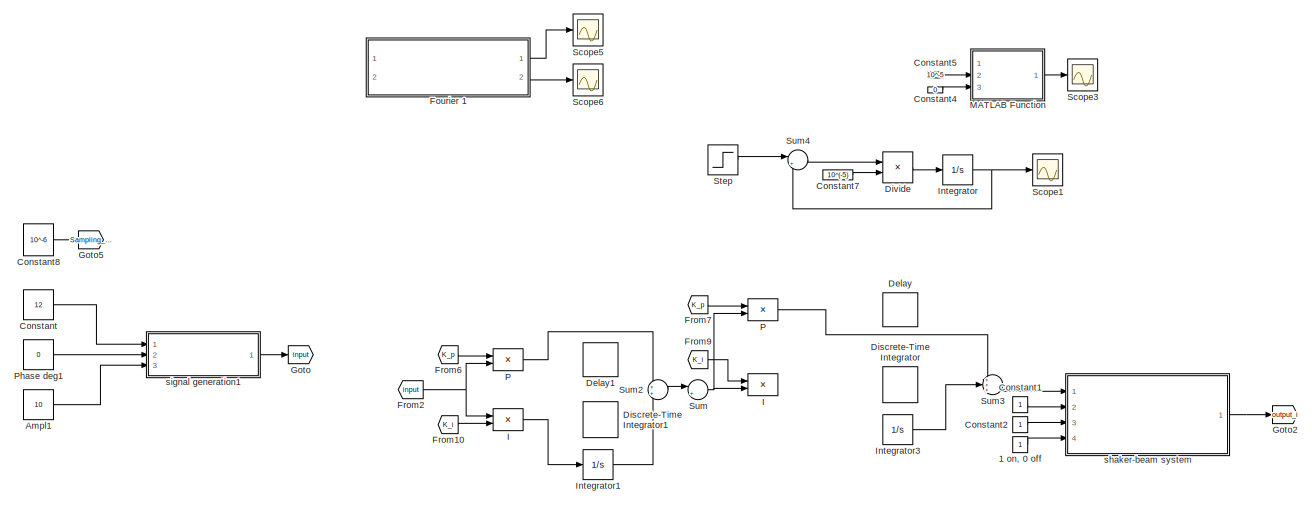
[diagram: root canvas - part 1/2, full width, middle band]
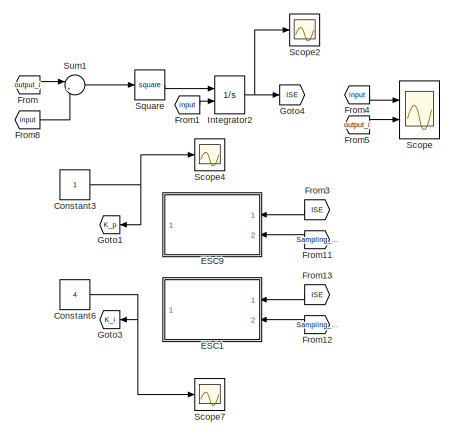
[diagram: root canvas - part 2/2, bottom right region]
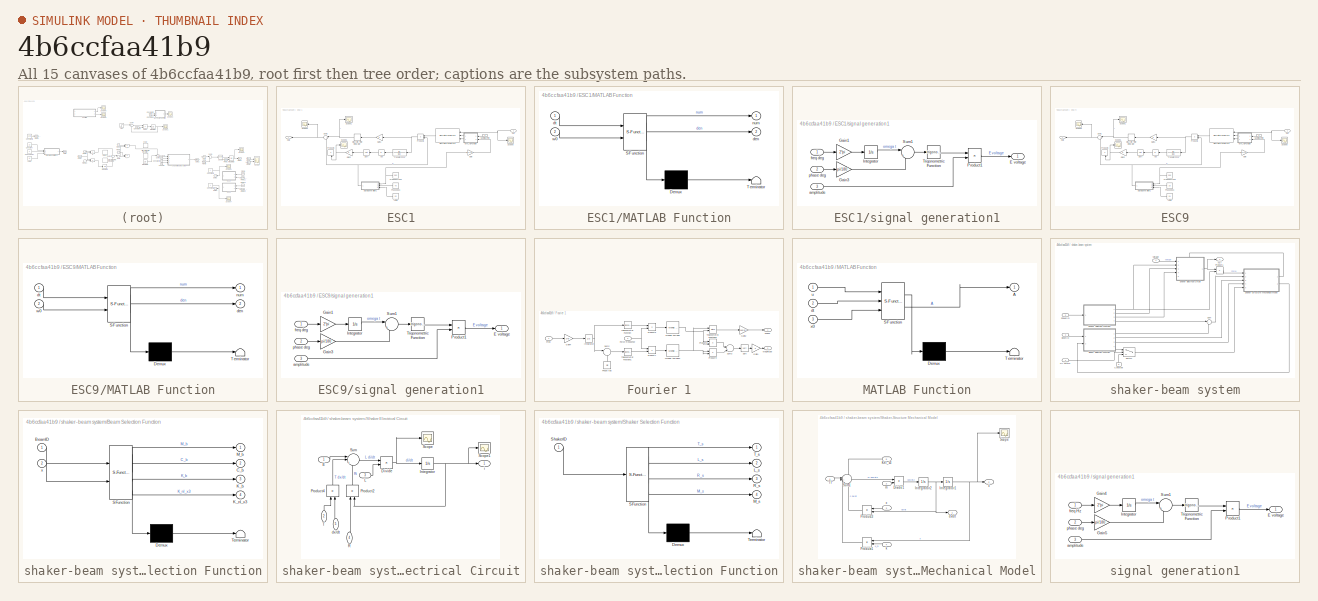
[diagram: thumbnail index - all 15 canvases of the model, root first then tree order]
MODEL slx_4b6ccfaa41b9
KIND model
CONFIG AbsTol = auto
CONFIG EnableMultiTasking = off
CONFIG FixedStep = 0.000001
CONFIG MaxStep = auto
CONFIG MinStep = auto
CONFIG RelTol = 1e-3
CONFIG SampleTimeConstraint = Unconstrained
CONFIG SolverName = ode8
CONFIG StartTime = 0.0
CONFIG StopTime = 2.3
WORKSPACE source: mxarray member
WORKSPACE initial_current = 0
BLOCK [Constant] 1 on, 0 off
BLOCK [Constant] Ampl1
  Value = 10
BLOCK [Constant] Constant
  Value = 12
BLOCK [Constant] Constant1
BLOCK [Constant] Constant2
BLOCK [Constant] Constant3
BLOCK [Constant] Constant4
  Commented = on
  Value = 0
BLOCK [Constant] Constant5
  Commented = on
  Value = 10^-5
BLOCK [Constant] Constant6
  Value = 4
BLOCK [Constant] Constant7
  Commented = on
  Value = 10^(-5)
BLOCK [Constant] Constant8
  Value = 10^-6
BLOCK [Delay] Delay
  DelayLength = 1
  InputPortMap = u0
  Ports = [1, 1]
BLOCK [Delay] Delay1
  DelayLength = 1
  InputPortMap = u0
  Ports = [1, 1]
BLOCK [DiscreteIntegrator] Discrete-Time Integrator
  ICPrevOutput = DiscIntNeverNeededParam
  ICPrevScaledInput = DiscIntNeverNeededParam
  InitialConditionSetting = Auto
  Ports = [1, 1]
  SampleTime = -1
BLOCK [DiscreteIntegrator] Discrete-Time Integrator1
  ICPrevOutput = DiscIntNeverNeededParam
  ICPrevScaledInput = DiscIntNeverNeededParam
  InitialConditionSetting = Auto
  Ports = [1, 1]
  SampleTime = -1
BLOCK [Product] Divide
  Commented = on
  Inputs = */
  Ports = [2, 1]
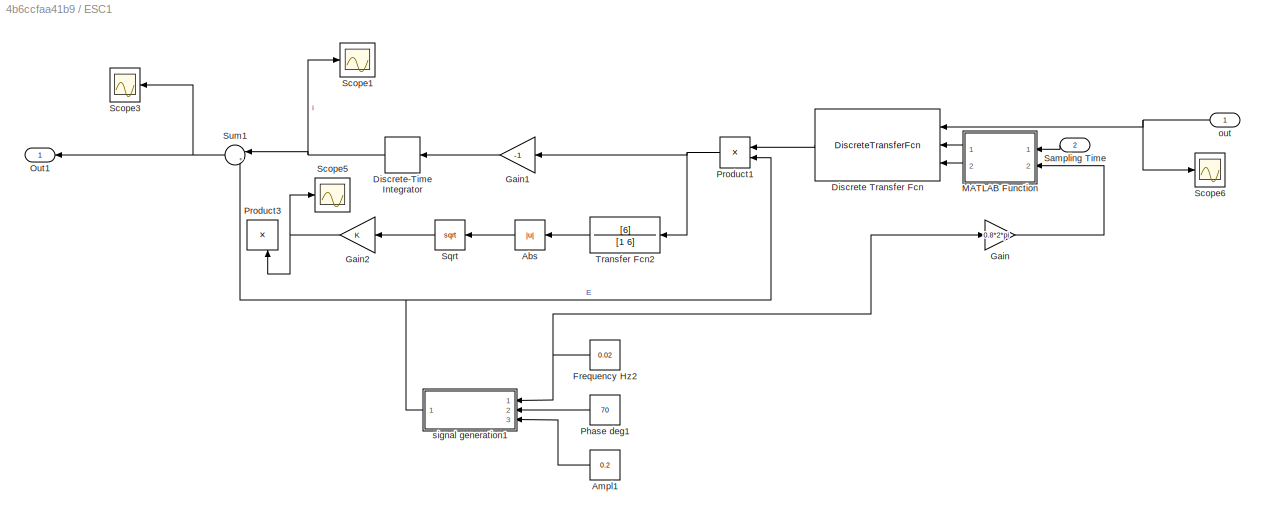
BLOCK [SubSystem] ESC1
  NameLocation = top
  Ports = [2, 1]
  RequestExecContextInheritance = off
BLOCK [Abs] ESC1/Abs
  Commented = on
  NameLocation = top
  SaturateOnIntegerOverflow = off
BLOCK [Constant] ESC1/Ampl1
  NameLocation = top
  Value = 0.2
BLOCK [DiscreteTransferFcn] ESC1/Discrete Transfer Fcn
  DenominatorSource = Input port
  InputPortMap = u0,p1,p3
  NameLocation = top
  NumeratorSource = Input port
  Ports = [3, 1]
  a0EqualsOne = on
BLOCK [DiscreteIntegrator] ESC1/Discrete-Time Integrator
  ICPrevOutput = DiscIntNeverNeededParam
  ICPrevScaledInput = DiscIntNeverNeededParam
  InitialConditionSetting = Auto
  NameLocation = top
  Ports = [1, 1]
  SampleTime = -1
BLOCK [Constant] ESC1/Frequency Hz2
  NameLocation = top
  Value = 0.02
BLOCK [Gain] ESC1/Gain
  Gain = 0.8*2*pi
BLOCK [Gain] ESC1/Gain1
  Gain = -1
  NameLocation = top
BLOCK [Gain] ESC1/Gain2
  Commented = on
  NameLocation = top
BLOCK [SubSystem] ESC1/MATLAB Function
  ErrorFcn = Stateflow.Translate.translate
  NameLocation = top
  PermitHierarchicalResolution = ExplicitOnly
  Ports = [2, 2]
  RequestExecContextInheritance = off
  SFBlockType = MATLAB Function
  TreatAsAtomicUnit = on
BLOCK [Demux] ESC1/MATLAB Function/ Demux 
  Outputs = 1
  Ports = [1, 1]
BLOCK [S-Function] ESC1/MATLAB Function/ SFunction 
  EnableBusSupport = on
  FunctionName = sf_sfun
  PortCounts = [2 3]
  Ports = [2, 3]
  SFcnIsStateOwnerBlock = off
  SFunctionDeploymentMode = off
  Tag = Stateflow S-Function 5
BLOCK [Terminator] ESC1/MATLAB Function/ Terminator 
BLOCK [Outport] ESC1/MATLAB Function/den
  Port = 2
BLOCK [Inport] ESC1/MATLAB Function/dt
BLOCK [Outport] ESC1/MATLAB Function/num
BLOCK [Inport] ESC1/MATLAB Function/w0
  Port = 2
BLOCK [Outport] ESC1/Out1
  NameLocation = top
BLOCK [Constant] ESC1/Phase deg1
  NameLocation = top
  Value = 70
BLOCK [Product] ESC1/Product1
  Ports = [2, 1]
BLOCK [Product] ESC1/Product3
  Commented = on
  NameLocation = left
  Ports = [2, 1]
BLOCK [Inport] ESC1/Sampling Time
  NameLocation = top
  Port = 2
BLOCK [Scope] ESC1/Scope1
  Floating = off
  NumInputPorts = 1
  Ports = [1]
  ScopeSpecificationString = Simulink.scopes.TimeScopeBlockCfg('CurrentConfiguration', extmgr.ConfigurationSet(extmgr.Configuration('Core','General UI',true,'FigureColor',[1 1 1]),extmgr.Configuration('Core','Source UI',true),extmgr.Configuration('Sources','WiredSimulink',true,'DataLoggingVariableName','ScopeData1'),extmgr.Configuration('Visuals','Time Domain',true,'SerializedDisplays',{struct('MinYLimReal','-2120281437368164...<+2226ch>
BLOCK [Scope] ESC1/Scope3
  Floating = off
  NameLocation = top
  NumInputPorts = 1
  Ports = [1]
  ScopeSpecificationString = Simulink.scopes.TimeScopeBlockCfg('CurrentConfiguration', extmgr.ConfigurationSet(extmgr.Configuration('Core','General UI',true,'FigureColor',[1 1 1]),extmgr.Configuration('Core','Source UI',true),extmgr.Configuration('Sources','WiredSimulink',true,'DataLoggingVariableName','ScopeData4'),extmgr.Configuration('Visuals','Time Domain',true,'SerializedDisplays',{struct('MinYLimReal','-5.26574','MaxYLi...<+1586ch>
BLOCK [Scope] ESC1/Scope5
  Commented = on
  Floating = off
  NumInputPorts = 1
  Ports = [1]
  ScopeSpecificationString = Simulink.scopes.TimeScopeBlockCfg('CurrentConfiguration', extmgr.ConfigurationSet(extmgr.Configuration('Core','General UI',true,'FigureColor',[1 1 1]),extmgr.Configuration('Core','Source UI',true),extmgr.Configuration('Sources','WiredSimulink',true,'DataLoggingVariableName','ScopeData6'),extmgr.Configuration('Visuals','Time Domain',true,'SerializedDisplays',{struct('MinYLimReal','-1329215136034380...<+1964ch>
BLOCK [Scope] ESC1/Scope6
  Floating = off
  NumInputPorts = 1
  Ports = [1]
  ScopeSpecificationString = Simulink.scopes.TimeScopeBlockCfg('CurrentConfiguration', extmgr.ConfigurationSet(extmgr.Configuration('Core','General UI',true,'FigureColor',[1 1 1]),extmgr.Configuration('Core','Source UI',true),extmgr.Configuration('Sources','WiredSimulink',true,'DataLoggingVariableName','ScopeData2'),extmgr.Configuration('Visuals','Time Domain',true,'SerializedDisplays',{struct('MinYLimReal','-0.37976','MaxYLi...<+1575ch>
BLOCK [Sqrt] ESC1/Sqrt
  Commented = on
  NameLocation = top
BLOCK [Sum] ESC1/Sum1
  Inputs = |++
  NameLocation = top
  Ports = [2, 1]
BLOCK [TransferFcn] ESC1/Transfer Fcn2
  Commented = on
  Denominator = [1 6]
  NameLocation = top
  Numerator = [6]
BLOCK [Inport] ESC1/out
  NameLocation = top
BLOCK [SubSystem] ESC1/signal generation1
  NameLocation = top
  Ports = [3, 1]
  RequestExecContextInheritance = off
BLOCK [Outport] ESC1/signal generation1/E voltage
BLOCK [Gain] ESC1/signal generation1/Gain1
  Gain = 2*pi
BLOCK [Gain] ESC1/signal generation1/Gain3
  Gain = pi/180
BLOCK [Integrator] ESC1/signal generation1/Integrator
  Ports = [1, 1]
BLOCK [Product] ESC1/signal generation1/Product1
  Ports = [2, 1]
BLOCK [Sum] ESC1/signal generation1/Sum1
  Inputs = |++
  Ports = [2, 1]
BLOCK [Trigonometry] ESC1/signal generation1/Trigonometric Function
  Ports = [1, 1]
BLOCK [Inport] ESC1/signal generation1/amplitude
  Port = 3
BLOCK [Inport] ESC1/signal generation1/freq deg
BLOCK [Inport] ESC1/signal generation1/phase deg
  Port = 2
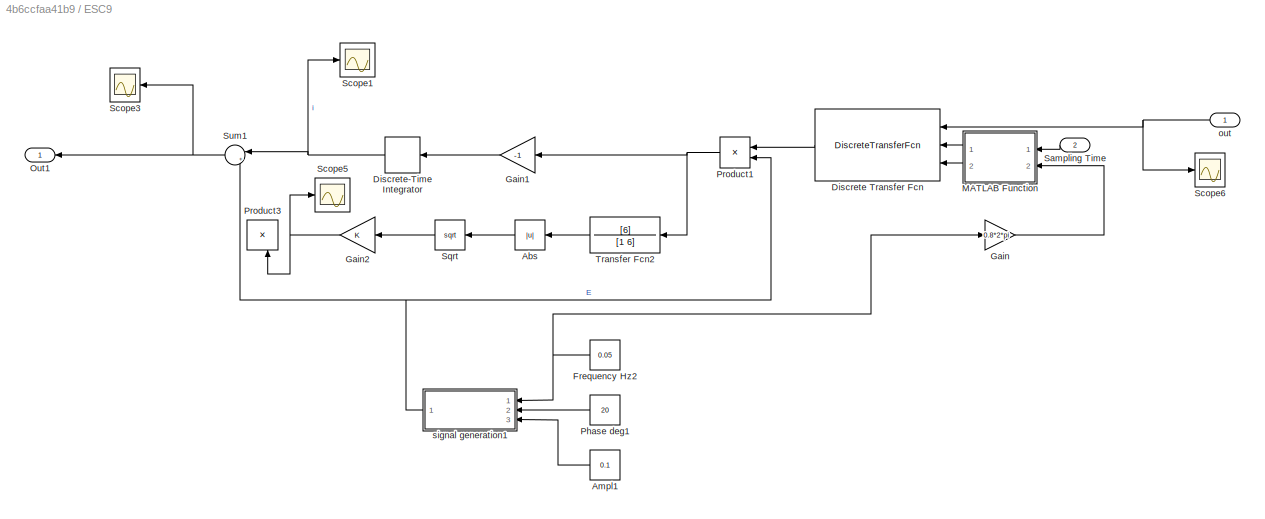
BLOCK [SubSystem] ESC9
  NameLocation = top
  Ports = [2, 1]
  RequestExecContextInheritance = off
BLOCK [Abs] ESC9/Abs
  Commented = on
  NameLocation = top
  SaturateOnIntegerOverflow = off
BLOCK [Constant] ESC9/Ampl1
  NameLocation = top
  Value = 0.1
BLOCK [DiscreteTransferFcn] ESC9/Discrete Transfer Fcn
  DenominatorSource = Input port
  InputPortMap = u0,p1,p3
  NameLocation = top
  NumeratorSource = Input port
  Ports = [3, 1]
  a0EqualsOne = on
BLOCK [DiscreteIntegrator] ESC9/Discrete-Time Integrator
  ICPrevOutput = DiscIntNeverNeededParam
  ICPrevScaledInput = DiscIntNeverNeededParam
  InitialConditionSetting = Auto
  NameLocation = top
  Ports = [1, 1]
  SampleTime = -1
BLOCK [Constant] ESC9/Frequency Hz2
  NameLocation = top
  Value = 0.05
BLOCK [Gain] ESC9/Gain
  Gain = 0.8*2*pi
BLOCK [Gain] ESC9/Gain1
  Gain = -1
  NameLocation = top
BLOCK [Gain] ESC9/Gain2
  Commented = on
  NameLocation = top
BLOCK [SubSystem] ESC9/MATLAB Function
  ErrorFcn = Stateflow.Translate.translate
  NameLocation = top
  PermitHierarchicalResolution = ExplicitOnly
  Ports = [2, 2]
  RequestExecContextInheritance = off
  SFBlockType = MATLAB Function
  TreatAsAtomicUnit = on
BLOCK [Demux] ESC9/MATLAB Function/ Demux 
  Outputs = 1
  Ports = [1, 1]
BLOCK [S-Function] ESC9/MATLAB Function/ SFunction 
  EnableBusSupport = on
  FunctionName = sf_sfun
  PortCounts = [2 3]
  Ports = [2, 3]
  SFcnIsStateOwnerBlock = off
  SFunctionDeploymentMode = off
  Tag = Stateflow S-Function 4
BLOCK [Terminator] ESC9/MATLAB Function/ Terminator 
BLOCK [Outport] ESC9/MATLAB Function/den
  Port = 2
BLOCK [Inport] ESC9/MATLAB Function/dt
BLOCK [Outport] ESC9/MATLAB Function/num
BLOCK [Inport] ESC9/MATLAB Function/w0
  Port = 2
BLOCK [Outport] ESC9/Out1
  NameLocation = top
BLOCK [Constant] ESC9/Phase deg1
  NameLocation = top
  Value = 20
BLOCK [Product] ESC9/Product1
  Ports = [2, 1]
BLOCK [Product] ESC9/Product3
  Commented = on
  NameLocation = left
  Ports = [2, 1]
BLOCK [Inport] ESC9/Sampling Time
  NameLocation = top
  Port = 2
BLOCK [Scope] ESC9/Scope1
  Floating = off
  NumInputPorts = 1
  Ports = [1]
  ScopeSpecificationString = Simulink.scopes.TimeScopeBlockCfg('CurrentConfiguration', extmgr.ConfigurationSet(extmgr.Configuration('Core','General UI',true,'FigureColor',[1 1 1]),extmgr.Configuration('Core','Source UI',true),extmgr.Configuration('Sources','WiredSimulink',true,'DataLoggingVariableName','ScopeData1'),extmgr.Configuration('Visuals','Time Domain',true,'SerializedDisplays',{struct('MinYLimReal','-2120281437368164...<+2226ch>
BLOCK [Scope] ESC9/Scope3
  Floating = off
  NameLocation = top
  NumInputPorts = 1
  Ports = [1]
  ScopeSpecificationString = Simulink.scopes.TimeScopeBlockCfg('CurrentConfiguration', extmgr.ConfigurationSet(extmgr.Configuration('Core','General UI',true,'FigureColor',[1 1 1]),extmgr.Configuration('Core','Source UI',true),extmgr.Configuration('Sources','WiredSimulink',true,'DataLoggingVariableName','ScopeData4'),extmgr.Configuration('Visuals','Time Domain',true,'SerializedDisplays',{struct('MinYLimReal','-5.26574','MaxYLi...<+1586ch>
BLOCK [Scope] ESC9/Scope5
  Commented = on
  Floating = off
  NumInputPorts = 1
  Ports = [1]
  ScopeSpecificationString = Simulink.scopes.TimeScopeBlockCfg('CurrentConfiguration', extmgr.ConfigurationSet(extmgr.Configuration('Core','General UI',true,'FigureColor',[1 1 1]),extmgr.Configuration('Core','Source UI',true),extmgr.Configuration('Sources','WiredSimulink',true,'DataLoggingVariableName','ScopeData6'),extmgr.Configuration('Visuals','Time Domain',true,'SerializedDisplays',{struct('MinYLimReal','-1329215136034380...<+1964ch>
BLOCK [Scope] ESC9/Scope6
  Floating = off
  NumInputPorts = 1
  Ports = [1]
  ScopeSpecificationString = Simulink.scopes.TimeScopeBlockCfg('CurrentConfiguration', extmgr.ConfigurationSet(extmgr.Configuration('Core','General UI',true,'FigureColor',[1 1 1]),extmgr.Configuration('Core','Source UI',true),extmgr.Configuration('Sources','WiredSimulink',true,'DataLoggingVariableName','ScopeData2'),extmgr.Configuration('Visuals','Time Domain',true,'SerializedDisplays',{struct('MinYLimReal','-0.37976','MaxYLi...<+1575ch>
BLOCK [Sqrt] ESC9/Sqrt
  Commented = on
  NameLocation = top
BLOCK [Sum] ESC9/Sum1
  Inputs = |++
  NameLocation = top
  Ports = [2, 1]
BLOCK [TransferFcn] ESC9/Transfer Fcn2
  Commented = on
  Denominator = [1 6]
  NameLocation = top
  Numerator = [6]
BLOCK [Inport] ESC9/out
  NameLocation = top
BLOCK [SubSystem] ESC9/signal generation1
  NameLocation = top
  Ports = [3, 1]
  RequestExecContextInheritance = off
BLOCK [Outport] ESC9/signal generation1/E voltage
BLOCK [Gain] ESC9/signal generation1/Gain1
  Gain = 2*pi
BLOCK [Gain] ESC9/signal generation1/Gain3
  Gain = pi/180
BLOCK [Integrator] ESC9/signal generation1/Integrator
  Ports = [1, 1]
BLOCK [Product] ESC9/signal generation1/Product1
  Ports = [2, 1]
BLOCK [Sum] ESC9/signal generation1/Sum1
  Inputs = |++
  Ports = [2, 1]
BLOCK [Trigonometry] ESC9/signal generation1/Trigonometric Function
  Ports = [1, 1]
BLOCK [Inport] ESC9/signal generation1/amplitude
  Port = 3
BLOCK [Inport] ESC9/signal generation1/freq deg
BLOCK [Inport] ESC9/signal generation1/phase deg
  Port = 2
BLOCK [SubSystem] Fourier 1
  Commented = on
  Ports = [2, 2]
  RequestExecContextInheritance = off
BLOCK [Inport] Fourier 1/Force Response
  Port = 2
BLOCK [Inport] Fourier 1/Freq
BLOCK [Gain] Fourier 1/Gain1
  Gain = 2
BLOCK [Gain] Fourier 1/Gain2
  Gain = 180/pi
BLOCK [Gain] Fourier 1/Gain4
  Gain = 2*pi
BLOCK [Integrator] Fourier 1/Integrator
  Ports = [1, 1]
BLOCK [Outport] Fourier 1/Magnitude
  Port = 2
BLOCK [Reference] Fourier 1/Moving Average  REF=dspstat3/Moving
Average
  Ports = [1, 1]
  SourceBlock = dspstat3/Moving\nAverage
  SourceProductBaseCode = DS
  SourceType = dsp.simulink.MovingAverage
BLOCK [Reference] Fourier 1/Moving Average1  REF=dspstat3/Moving
Average
  Ports = [1, 1]
  SourceBlock = dspstat3/Moving\nAverage
  SourceProductBaseCode = DS
  SourceType = dsp.simulink.MovingAverage
BLOCK [Outport] Fourier 1/Phase
BLOCK [Constant] Fourier 1/Phase rad
  NameLocation = right
  Value = pi/2
BLOCK [Product] Fourier 1/Product6
  NameLocation = top
  Ports = [2, 1]
BLOCK [Product] Fourier 1/Product7
  NameLocation = top
  Ports = [2, 1]
BLOCK [Product] Fourier 1/Product8
  NameLocation = top
  Ports = [2, 1]
BLOCK [Product] Fourier 1/Product9
  NameLocation = top
  Ports = [2, 1]
BLOCK [Sqrt] Fourier 1/Sqrt
BLOCK [Sum] Fourier 1/Sum2
  Inputs = |-+
  Ports = [2, 1]
BLOCK [Sum] Fourier 1/Sum3
  Inputs = |+|+|
  Ports = [2, 1]
BLOCK [Trigonometry] Fourier 1/Trigonometric Function
  Ports = [1, 1]
BLOCK [Trigonometry] Fourier 1/Trigonometric Function1
  Ports = [1, 1]
BLOCK [Trigonometry] Fourier 1/Trigonometric Function2
  Operator = atan2
  Ports = [2, 1]
BLOCK [From] From
  GotoTag = output_i
BLOCK [From] From1
  GotoTag = input
BLOCK [From] From10
  GotoTag = K_i
BLOCK [From] From11
  GotoTag = Sampling_Time
  NameLocation = top
BLOCK [From] From12
  GotoTag = Sampling_Time
  NameLocation = top
BLOCK [From] From13
  GotoTag = ISE
  NameLocation = top
BLOCK [From] From2
  GotoTag = input
BLOCK [From] From3
  GotoTag = ISE
  NameLocation = top
BLOCK [From] From4
  GotoTag = input
BLOCK [From] From5
  GotoTag = output_i
BLOCK [From] From6
  GotoTag = K_p
BLOCK [From] From7
  GotoTag = K_p
BLOCK [From] From8
  GotoTag = input
BLOCK [From] From9
  GotoTag = K_i
BLOCK [Goto] Goto
  GotoTag = input
BLOCK [Goto] Goto1
  GotoTag = K_p
  NameLocation = top
BLOCK [Goto] Goto2
  GotoTag = output_i
BLOCK [Goto] Goto3
  GotoTag = K_i
  NameLocation = top
BLOCK [Goto] Goto4
  GotoTag = ISE
  NameLocation = top
BLOCK [Goto] Goto5
  GotoTag = Sampling_Time
BLOCK [Product] I
  Ports = [2, 1]
BLOCK [Product] I 
  Ports = [2, 1]
BLOCK [Integrator] Integrator
  Commented = on
  Ports = [1, 1]
BLOCK [Integrator] Integrator1
  Ports = [1, 1]
BLOCK [Integrator] Integrator2
  ExternalReset = rising
  Ports = [2, 1]
BLOCK [Integrator] Integrator3
  Ports = [1, 1]
BLOCK [SubSystem] MATLAB Function
  Commented = on
  ErrorFcn = Stateflow.Translate.translate
  PermitHierarchicalResolution = ExplicitOnly
  Ports = [3, 1]
  RequestExecContextInheritance = off
  SFBlockType = MATLAB Function
  TreatAsAtomicUnit = on
BLOCK [Demux] MATLAB Function/ Demux 
  Outputs = 1
  Ports = [1, 1]
BLOCK [S-Function] MATLAB Function/ SFunction 
  EnableBusSupport = on
  FunctionName = sf_sfun
  PortCounts = [3 2]
  Ports = [3, 2]
  SFcnIsStateOwnerBlock = off
  SFunctionDeploymentMode = off
  Tag = Stateflow S-Function 3
BLOCK [Terminator] MATLAB Function/ Terminator 
BLOCK [Outport] MATLAB Function/A
BLOCK [Inport] MATLAB Function/dt
  Port = 2
BLOCK [Inport] MATLAB Function/u
BLOCK [Inport] MATLAB Function/x0
  Port = 3
BLOCK [Product] P
  Ports = [2, 1]
BLOCK [Product] P 
  Ports = [2, 1]
BLOCK [Constant] Phase deg1
  Value = 0
BLOCK [Scope] Scope
  Floating = off
  NumInputPorts = 2
  Ports = [2]
  ScopeSpecificationString = Simulink.scopes.TimeScopeBlockCfg('CurrentConfiguration', extmgr.ConfigurationSet(extmgr.Configuration('Core','General UI',true),extmgr.Configuration('Core','Source UI',true),extmgr.Configuration('Sources','WiredSimulink',true,'DataLoggingVariableName','ScopeData1'),extmgr.Configuration('Visuals','Time Domain',true,'SerializedDisplays',{struct('MinYLimReal','-12.5','MaxYLimReal','12.5','YLabelReal...<+1452ch>
BLOCK [Scope] Scope1
  Commented = on
  Floating = off
  NumInputPorts = 1
  Ports = [1]
  ScopeSpecificationString = Simulink.scopes.TimeScopeBlockCfg('CurrentConfiguration', extmgr.ConfigurationSet(extmgr.Configuration('Core','General UI',true),extmgr.Configuration('Core','Source UI',true),extmgr.Configuration('Sources','WiredSimulink',true,'DataLoggingVariableName','ScopeData1'),extmgr.Configuration('Visuals','Time Domain',true,'SerializedDisplays',{struct('MinYLimReal','-0.125','MaxYLimReal','1.125','YLabelRe...<+1357ch>
BLOCK [Scope] Scope2
  Floating = off
  NumInputPorts = 1
  Ports = [1]
  ScopeSpecificationString = Simulink.scopes.TimeScopeBlockCfg('CurrentConfiguration', extmgr.ConfigurationSet(extmgr.Configuration('Core','General UI',true),extmgr.Configuration('Core','Source UI',true),extmgr.Configuration('Sources','WiredSimulink',true,'DataLoggingVariableName','ScopeData3'),extmgr.Configuration('Visuals','Time Domain',true,'SerializedDisplays',{struct('MinYLimReal','-46.12471','MaxYLimReal','415.12243','Y...<+1457ch>
BLOCK [Scope] Scope3
  Commented = on
  Floating = off
  NumInputPorts = 1
  Ports = [1]
  ScopeSpecificationString = Simulink.scopes.TimeScopeBlockCfg('CurrentConfiguration', extmgr.ConfigurationSet(extmgr.Configuration('Core','General UI',true),extmgr.Configuration('Core','Source UI',true),extmgr.Configuration('Sources','WiredSimulink',true,'DataLoggingVariableName','ScopeData2'),extmgr.Configuration('Visuals','Time Domain',true,'SerializedDisplays',{struct('MinYLimReal','-1.00000','MaxYLimReal','1.00000','YLab...<+1369ch>
BLOCK [Scope] Scope4
  Floating = off
  NumInputPorts = 1
  Ports = [1]
  ScopeSpecificationString = Simulink.scopes.TimeScopeBlockCfg('CurrentConfiguration', extmgr.ConfigurationSet(extmgr.Configuration('Core','General UI',true),extmgr.Configuration('Core','Source UI',true),extmgr.Configuration('Sources','WiredSimulink',true,'DataLoggingVariableName','ScopeData2'),extmgr.Configuration('Visuals','Time Domain',true,'SerializedDisplays',{struct('MinYLimReal','-2.17284','MaxYLimReal','0.27957','YLab...<+1560ch>
BLOCK [Scope] Scope5
  Commented = on
  Floating = off
  NumInputPorts = 1
  Ports = [1]
  ScopeSpecificationString = Simulink.scopes.TimeScopeBlockCfg('CurrentConfiguration', extmgr.ConfigurationSet(extmgr.Configuration('Core','General UI',true),extmgr.Configuration('Core','Source UI',true),extmgr.Configuration('Sources','WiredSimulink',true,'DataLoggingVariableName','ScopeData3'),extmgr.Configuration('Visuals','Time Domain',true,'SerializedDisplays',{struct('MinYLimReal','-57.90231','MaxYLimReal','182.05927','Y...<+1413ch>
BLOCK [Scope] Scope6
  Commented = on
  Floating = off
  NumInputPorts = 1
  Ports = [1]
  ScopeSpecificationString = Simulink.scopes.TimeScopeBlockCfg('CurrentConfiguration', extmgr.ConfigurationSet(extmgr.Configuration('Core','General UI',true),extmgr.Configuration('Core','Source UI',true),extmgr.Configuration('Sources','WiredSimulink',true,'DataLoggingVariableName','ScopeData4'),extmgr.Configuration('Visuals','Time Domain',true,'SerializedDisplays',{struct('MinYLimReal','-31.30956','MaxYLimReal','281.78604','Y...<+1411ch>
BLOCK [Scope] Scope7
  Floating = off
  NumInputPorts = 1
  Ports = [1]
  ScopeSpecificationString = Simulink.scopes.TimeScopeBlockCfg('CurrentConfiguration', extmgr.ConfigurationSet(extmgr.Configuration('Core','General UI',true),extmgr.Configuration('Core','Source UI',true),extmgr.Configuration('Sources','WiredSimulink',true,'DataLoggingVariableName','ScopeData5'),extmgr.Configuration('Visuals','Time Domain',true,'SerializedDisplays',{struct('MinYLimReal','-3.97909','MaxYLimReal','0.65096','YLab...<+1560ch>
BLOCK [Math] Square
  Operator = square
  Ports = [1, 1]
BLOCK [Step] Step
  Commented = on
  SampleTime = 0
  Time = 0
BLOCK [Sum] Sum
  Inputs = |+-
  Ports = [2, 1]
BLOCK [Sum] Sum1
  Inputs = |+-
  Ports = [2, 1]
BLOCK [Sum] Sum2
  Ports = [2, 1]
BLOCK [Sum] Sum3
  Inputs = +++
  Ports = [3, 1]
BLOCK [Sum] Sum4
  Commented = on
  Inputs = |+-
  Ports = [2, 1]
BLOCK [SubSystem] shaker-beam system
  Ports = [4, 1]
  RequestExecContextInheritance = off
BLOCK [SubSystem] shaker-beam system/Beam Selection Function
  ErrorFcn = Stateflow.Translate.translate
  PermitHierarchicalResolution = ExplicitOnly
  Ports = [2, 4]
  RequestExecContextInheritance = off
  SFBlockType = MATLAB Function
  TreatAsAtomicUnit = on
BLOCK [Demux] shaker-beam system/Beam Selection Function/ Demux 
  Outputs = 1
  Ports = [1, 1]
BLOCK [S-Function] shaker-beam system/Beam Selection Function/ SFunction 
  EnableBusSupport = on
  FunctionName = sf_sfun
  PortCounts = [2 5]
  Ports = [2, 5]
  SFcnIsStateOwnerBlock = off
  SFunctionDeploymentMode = off
  Tag = Stateflow S-Function 1
BLOCK [Terminator] shaker-beam system/Beam Selection Function/ Terminator 
BLOCK [Inport] shaker-beam system/Beam Selection Function/BeamID
BLOCK [Outport] shaker-beam system/Beam Selection Function/C_b
  Port = 2
BLOCK [Outport] shaker-beam system/Beam Selection Function/K_b
  Port = 3
BLOCK [Outport] shaker-beam system/Beam Selection Function/K_nl_x3
  Port = 4
BLOCK [Outport] shaker-beam system/Beam Selection Function/M_b
BLOCK [Inport] shaker-beam system/Beam Selection Function/x
  Port = 2
BLOCK [Inport] shaker-beam system/BeamID
  Port = 3
BLOCK [Constant] shaker-beam system/Constant
  NameLocation = right
  Value = 0
BLOCK [Inport] shaker-beam system/NL switch
  Port = 4
BLOCK [Product] shaker-beam system/Product1
  NameLocation = top
  Ports = [2, 1]
BLOCK [SubSystem] shaker-beam system/Shaker Electrical Circuit
  PortSchema = {"entries":[{"content":{"sides":[{"content":{"connectorIds":["In1","In2","In3","In4"]},"type":"ConnectorPlacement.EquallySpacedRectSide","uuid":"0d3c555b-12b6-43fe-a0ab-5f3e3cbd0fce"},{"content":{"connectorIds":["Out1"],"side":"RIGHT"},"type":"ConnectorPlacement.EquallySpacedRectSide","uuid":"7ee828ba-1fb1-406e-b6d6-19bcbb73e609"},{"content":{"connectorIds":["In5"],"side":"TOP"},"type":"ConnectorP...<+407ch>
  Ports = [5, 1]
  RequestExecContextInheritance = off
BLOCK [Product] shaker-beam system/Shaker Electrical Circuit/Divide
  Inputs = */
  Ports = [2, 1]
BLOCK [Inport] shaker-beam system/Shaker Electrical Circuit/E
BLOCK [Integrator] shaker-beam system/Shaker Electrical Circuit/Integrator
  Ports = [1, 1]
BLOCK [Inport] shaker-beam system/Shaker Electrical Circuit/L
  Port = 3
BLOCK [Product] shaker-beam system/Shaker Electrical Circuit/Product2
  NameLocation = left
  Ports = [2, 1]
BLOCK [Product] shaker-beam system/Shaker Electrical Circuit/Product4
  NameLocation = left
  Ports = [2, 1]
BLOCK [Inport] shaker-beam system/Shaker Electrical Circuit/R
  Port = 4
BLOCK [Scope] shaker-beam system/Shaker Electrical Circuit/Scope
  Floating = off
  NumInputPorts = 1
  Ports = [1]
  ScopeSpecificationString = Simulink.scopes.TimeScopeBlockCfg('CurrentConfiguration', extmgr.ConfigurationSet(extmgr.Configuration('Core','General UI',true),extmgr.Configuration('Core','Source UI',true),extmgr.Configuration('Sources','WiredSimulink',true,'DataLoggingVariableName','ScopeData2'),extmgr.Configuration('Visuals','Time Domain',true,'SerializedDisplays',{struct('MinYLimReal','4232372415872.73975','MaxYLimReal','667...<+1533ch>
BLOCK [Scope] shaker-beam system/Shaker Electrical Circuit/Scope1
  Floating = off
  NumInputPorts = 1
  Ports = [1]
  ScopeSpecificationString = Simulink.scopes.TimeScopeBlockCfg('CurrentConfiguration', extmgr.ConfigurationSet(extmgr.Configuration('Core','General UI',true),extmgr.Configuration('Core','Source UI',true),extmgr.Configuration('Sources','WiredSimulink',true,'DataLoggingVariableName','ScopeData1'),extmgr.Configuration('Visuals','Time Domain',true,'SerializedDisplays',{struct('MinYLimReal','-1862.75782','MaxYLimReal','787.251','Y...<+1478ch>
BLOCK [Sum] shaker-beam system/Shaker Electrical Circuit/Sum
  Inputs = ||+--
  Ports = [3, 1]
BLOCK [Inport] shaker-beam system/Shaker Electrical Circuit/T
  Port = 2
BLOCK [Inport] shaker-beam system/Shaker Electrical Circuit/dx//dt
  Port = 5
BLOCK [Outport] shaker-beam system/Shaker Electrical Circuit/i
BLOCK [SubSystem] shaker-beam system/Shaker Selection Function
  ErrorFcn = Stateflow.Translate.translate
  PermitHierarchicalResolution = ExplicitOnly
  Ports = [1, 4]
  RequestExecContextInheritance = off
  SFBlockType = MATLAB Function
  TreatAsAtomicUnit = on
BLOCK [Demux] shaker-beam system/Shaker Selection Function/ Demux 
  Outputs = 1
  Ports = [1, 1]
BLOCK [S-Function] shaker-beam system/Shaker Selection Function/ SFunction 
  EnableBusSupport = on
  FunctionName = sf_sfun
  PortCounts = [1 5]
  Ports = [1, 5]
  SFcnIsStateOwnerBlock = off
  SFunctionDeploymentMode = off
  Tag = Stateflow S-Function 2
BLOCK [Terminator] shaker-beam system/Shaker Selection Function/ Terminator 
BLOCK [Outport] shaker-beam system/Shaker Selection Function/L_s
  Port = 2
BLOCK [Outport] shaker-beam system/Shaker Selection Function/M_s
  Port = 4
BLOCK [Outport] shaker-beam system/Shaker Selection Function/R_s
  Port = 3
BLOCK [Inport] shaker-beam system/Shaker Selection Function/ShakerID
BLOCK [Outport] shaker-beam system/Shaker Selection Function/T_s
BLOCK [SubSystem] shaker-beam system/Shaker-Structure Mechanical Model
  Ports = [5, 2]
  RequestExecContextInheritance = off
BLOCK [Product] shaker-beam system/Shaker-Structure Mechanical Model/Divide1
  Inputs = */
  Ports = [2, 1]
BLOCK [Integrator] shaker-beam system/Shaker-Structure Mechanical Model/Integrator1
  Ports = [1, 1]
BLOCK [Integrator] shaker-beam system/Shaker-Structure Mechanical Model/Integrator2
  Ports = [1, 1]
BLOCK [Inport] shaker-beam system/Shaker-Structure Mechanical Model/Knl_x3
  NameLocation = top
  Port = 5
BLOCK [Product] shaker-beam system/Shaker-Structure Mechanical Model/Product1
  NameLocation = top
  Ports = [2, 1]
BLOCK [Product] shaker-beam system/Shaker-Structure Mechanical Model/Product3
  Ports = [2, 1]
BLOCK [Scope] shaker-beam system/Shaker-Structure Mechanical Model/Scope
  Floating = off
  NumInputPorts = 1
  Ports = [1]
  ScopeSpecificationString = Simulink.scopes.TimeScopeBlockCfg('CurrentConfiguration', extmgr.ConfigurationSet(extmgr.Configuration('Core','General UI',true),extmgr.Configuration('Core','Source UI',true),extmgr.Configuration('Sources','WiredSimulink',true,'DataLoggingVariableName','ScopeData2'),extmgr.Configuration('Visuals','Time Domain',true,'SerializedDisplays',{struct('MinYLimReal','-0.09118','MaxYLimReal','0.16569','YLab...<+1404ch>
BLOCK [Sum] shaker-beam system/Shaker-Structure Mechanical Model/Sum1
  Inputs = -|+--
  Ports = [4, 1]
BLOCK [Inport] shaker-beam system/Shaker-Structure Mechanical Model/TI
BLOCK [Inport] shaker-beam system/Shaker-Structure Mechanical Model/c
  NameLocation = top
  Port = 3
BLOCK [Outport] shaker-beam system/Shaker-Structure Mechanical Model/dx//dt
BLOCK [Inport] shaker-beam system/Shaker-Structure Mechanical Model/k
  Port = 4
BLOCK [Inport] shaker-beam system/Shaker-Structure Mechanical Model/m
  Port = 2
BLOCK [Outport] shaker-beam system/Shaker-Structure Mechanical Model/x
  Port = 2
BLOCK [Inport] shaker-beam system/ShakerID
  Port = 2
BLOCK [Sum] shaker-beam system/Sum
  Inputs = |++
  Ports = [2, 1]
BLOCK [Switch] shaker-beam system/Switch
  Criteria = u2 > Threshold
  InputSameDT = off
  SaturateOnIntegerOverflow = off
BLOCK [Inport] shaker-beam system/Voltage
BLOCK [Outport] shaker-beam system/x3:i
BLOCK [SubSystem] signal generation1
  Ports = [3, 1]
  RequestExecContextInheritance = off
BLOCK [Outport] signal generation1/E voltage
BLOCK [Gain] signal generation1/Gain4
  Gain = 2*pi
BLOCK [Gain] signal generation1/Gain5
  Gain = pi/180
BLOCK [Integrator] signal generation1/Integrator
  Ports = [1, 1]
BLOCK [Product] signal generation1/Product1
  Ports = [2, 1]
BLOCK [Sum] signal generation1/Sum1
  Inputs = |++
  Ports = [2, 1]
BLOCK [Trigonometry] signal generation1/Trigonometric Function
  Ports = [1, 1]
BLOCK [Inport] signal generation1/amplitude
  Port = 3
BLOCK [Inport] signal generation1/freq Hz
BLOCK [Inport] signal generation1/phase deg
  Port = 2
LINE 1 on, 0 off:1 -> shaker-beam system:4
LINE Ampl1:1 -> signal generation1:3
LINE Constant1:1 -> shaker-beam system:2
LINE Constant2:1 -> shaker-beam system:3
NET Constant3:1 -> Goto1:1, Scope4:1
LINE Constant4:1 -> MATLAB Function:3
LINE Constant5:1 -> MATLAB Function:2
NET Constant6:1 -> Goto3:1, Scope7:1
LINE Constant7:1 -> Divide:2
LINE Constant8:1 -> Goto5:1
LINE Constant:1 -> signal generation1:1
LINE Divide:1 -> Integrator:1
LINE ESC1/Abs:1 -> ESC1/Sqrt:1
LINE ESC1/Ampl1:1 -> ESC1/signal generation1:3
LINE ESC1/Discrete Transfer Fcn:1 -> ESC1/Product1:1
NET ESC1/Discrete-Time Integrator:1 -> ESC1/Scope1:1, ESC1/Sum1:1
NET ESC1/Frequency Hz2:1 -> ESC1/Gain:1, ESC1/signal generation1:1
LINE ESC1/Gain1:1 -> ESC1/Discrete-Time Integrator:1
NET ESC1/Gain2:1 -> ESC1/Product3:2, ESC1/Scope5:1
LINE ESC1/Gain:1 -> ESC1/MATLAB Function:2
LINE ESC1/MATLAB Function:1 -> ESC1/Discrete Transfer Fcn:2
LINE ESC1/MATLAB Function:2 -> ESC1/Discrete Transfer Fcn:3
LINE ESC1/Phase deg1:1 -> ESC1/signal generation1:2
NET ESC1/Product1:1 -> ESC1/Gain1:1, ESC1/Transfer Fcn2:1
LINE ESC1/Sampling Time:1 -> ESC1/MATLAB Function:1
LINE ESC1/Sqrt:1 -> ESC1/Gain2:1
NET ESC1/Sum1:1 -> ESC1/Out1:1, ESC1/Scope3:1
LINE ESC1/Transfer Fcn2:1 -> ESC1/Abs:1
NET ESC1/out:1 -> ESC1/Discrete Transfer Fcn:1, ESC1/Scope6:1
LINE ESC1/signal generation1/Gain1:1 -> ESC1/signal generation1/Integrator:1
LINE ESC1/signal generation1/Gain3:1 -> ESC1/signal generation1/Sum1:2
LINE ESC1/signal generation1/Integrator:1 -> ESC1/signal generation1/Sum1:1
LINE ESC1/signal generation1/Product1:1 -> ESC1/signal generation1/E voltage:1
LINE ESC1/signal generation1/Sum1:1 -> ESC1/signal generation1/Trigonometric Function:1
LINE ESC1/signal generation1/Trigonometric Function:1 -> ESC1/signal generation1/Product1:1
LINE ESC1/signal generation1/amplitude:1 -> ESC1/signal generation1/Product1:2
LINE ESC1/signal generation1/freq deg:1 -> ESC1/signal generation1/Gain1:1
LINE ESC1/signal generation1/phase deg:1 -> ESC1/signal generation1/Gain3:1
NET ESC1/signal generation1:1 -> ESC1/Product1:2, ESC1/Sum1:2
LINE ESC9/Abs:1 -> ESC9/Sqrt:1
LINE ESC9/Ampl1:1 -> ESC9/signal generation1:3
LINE ESC9/Discrete Transfer Fcn:1 -> ESC9/Product1:1
NET ESC9/Discrete-Time Integrator:1 -> ESC9/Scope1:1, ESC9/Sum1:1
NET ESC9/Frequency Hz2:1 -> ESC9/Gain:1, ESC9/signal generation1:1
LINE ESC9/Gain1:1 -> ESC9/Discrete-Time Integrator:1
NET ESC9/Gain2:1 -> ESC9/Product3:2, ESC9/Scope5:1
LINE ESC9/Gain:1 -> ESC9/MATLAB Function:2
LINE ESC9/MATLAB Function:1 -> ESC9/Discrete Transfer Fcn:2
LINE ESC9/MATLAB Function:2 -> ESC9/Discrete Transfer Fcn:3
LINE ESC9/Phase deg1:1 -> ESC9/signal generation1:2
NET ESC9/Product1:1 -> ESC9/Gain1:1, ESC9/Transfer Fcn2:1
LINE ESC9/Sampling Time:1 -> ESC9/MATLAB Function:1
LINE ESC9/Sqrt:1 -> ESC9/Gain2:1
NET ESC9/Sum1:1 -> ESC9/Out1:1, ESC9/Scope3:1
LINE ESC9/Transfer Fcn2:1 -> ESC9/Abs:1
NET ESC9/out:1 -> ESC9/Discrete Transfer Fcn:1, ESC9/Scope6:1
LINE ESC9/signal generation1/Gain1:1 -> ESC9/signal generation1/Integrator:1
LINE ESC9/signal generation1/Gain3:1 -> ESC9/signal generation1/Sum1:2
LINE ESC9/signal generation1/Integrator:1 -> ESC9/signal generation1/Sum1:1
LINE ESC9/signal generation1/Product1:1 -> ESC9/signal generation1/E voltage:1
LINE ESC9/signal generation1/Sum1:1 -> ESC9/signal generation1/Trigonometric Function:1
LINE ESC9/signal generation1/Trigonometric Function:1 -> ESC9/signal generation1/Product1:1
LINE ESC9/signal generation1/amplitude:1 -> ESC9/signal generation1/Product1:2
LINE ESC9/signal generation1/freq deg:1 -> ESC9/signal generation1/Gain1:1
LINE ESC9/signal generation1/phase deg:1 -> ESC9/signal generation1/Gain3:1
NET ESC9/signal generation1:1 -> ESC9/Product1:2, ESC9/Sum1:2
NET Fourier 1/Force Response:1 -> Fourier 1/Product6:2, Fourier 1/Product7:1
LINE Fourier 1/Freq:1 -> Fourier 1/Gain4:1
LINE Fourier 1/Gain1:1 -> Fourier 1/Magnitude:1
LINE Fourier 1/Gain2:1 -> Fourier 1/Phase:1
LINE Fourier 1/Gain4:1 -> Fourier 1/Integrator:1
NET Fourier 1/Integrator:1 -> Fourier 1/Sum2:1, Fourier 1/Trigonometric Function:1
NET Fourier 1/Moving Average1:1 -> Fourier 1/Product9:1, Fourier 1/Product9:2, Fourier 1/Trigonometric Function2:1
NET Fourier 1/Moving Average:1 -> Fourier 1/Product8:1, Fourier 1/Product8:2, Fourier 1/Trigonometric Function2:2
LINE Fourier 1/Phase rad:1 -> Fourier 1/Sum2:2
LINE Fourier 1/Product6:1 -> Fourier 1/Moving Average:1
LINE Fourier 1/Product7:1 -> Fourier 1/Moving Average1:1
LINE Fourier 1/Product8:1 -> Fourier 1/Sum3:1
LINE Fourier 1/Product9:1 -> Fourier 1/Sum3:2
LINE Fourier 1/Sqrt:1 -> Fourier 1/Gain1:1
LINE Fourier 1/Sum2:1 -> Fourier 1/Trigonometric Function1:1
LINE Fourier 1/Sum3:1 -> Fourier 1/Sqrt:1
LINE Fourier 1/Trigonometric Function1:1 -> Fourier 1/Product7:2
LINE Fourier 1/Trigonometric Function2:1 -> Fourier 1/Gain2:1
LINE Fourier 1/Trigonometric Function:1 -> Fourier 1/Product6:1
LINE Fourier 1:1 -> Scope5:1
LINE Fourier 1:2 -> Scope6:1
LINE From10:1 -> I:2
LINE From11:1 -> ESC9:2
LINE From12:1 -> ESC1:2
LINE From13:1 -> ESC1:1
LINE From1:1 -> Integrator2:2
NET From2:1 -> I:1, P:2
LINE From3:1 -> ESC9:1
LINE From4:1 -> Scope:1
LINE From5:1 -> Scope:2
LINE From6:1 -> P:1
LINE From7:1 -> P :1
LINE From8:1 -> Sum1:2
LINE From9:1 -> I :1
LINE From:1 -> Sum1:1
LINE I:1 -> Integrator1:1
LINE Integrator1:1 -> Sum2:2
NET Integrator2:1 -> Goto4:1, Scope2:1
LINE Integrator3:1 -> Sum3:2
NET Integrator:1 -> Scope1:1, Sum4:2
LINE MATLAB Function:1 -> Scope3:1
LINE P :1 -> Sum3:1
LINE P:1 -> Sum2:1
LINE Phase deg1:1 -> signal generation1:2
LINE Square:1 -> Integrator2:1
LINE Step:1 -> Sum4:1
LINE Sum1:1 -> Square:1
LINE Sum2:1 -> Sum:1
LINE Sum3:1 -> shaker-beam system:1
LINE Sum4:1 -> Divide:1
NET Sum:1 -> I :2, P :2
LINE shaker-beam system/Beam Selection Function:1 -> shaker-beam system/Sum:2
LINE shaker-beam system/Beam Selection Function:2 -> shaker-beam system/Shaker-Structure Mechanical Model:3
LINE shaker-beam system/Beam Selection Function:3 -> shaker-beam system/Shaker-Structure Mechanical Model:4
LINE shaker-beam system/Beam Selection Function:4 -> shaker-beam system/Switch:1
LINE shaker-beam system/BeamID:1 -> shaker-beam system/Beam Selection Function:1
LINE shaker-beam system/Constant:1 -> shaker-beam system/Switch:3
LINE shaker-beam system/NL switch:1 -> shaker-beam system/Switch:2
LINE shaker-beam system/Product1:1 -> shaker-beam system/Shaker-Structure Mechanical Model:1
NET shaker-beam system/Shaker Electrical Circuit/Divide:1 -> shaker-beam system/Shaker Electrical Circuit/Integrator:1, shaker-beam system/Shaker Electrical Circuit/Scope:1
LINE shaker-beam system/Shaker Electrical Circuit/E:1 -> shaker-beam system/Shaker Electrical Circuit/Sum:1
NET shaker-beam system/Shaker Electrical Circuit/Integrator:1 -> shaker-beam system/Shaker Electrical Circuit/Product2:2, shaker-beam system/Shaker Electrical Circuit/Scope1:1, shaker-beam system/Shaker Electrical Circuit/i:1
LINE shaker-beam system/Shaker Electrical Circuit/L:1 -> shaker-beam system/Shaker Electrical Circuit/Divide:2
LINE shaker-beam system/Shaker Electrical Circuit/Product2:1 -> shaker-beam system/Shaker Electrical Circuit/Sum:3
LINE shaker-beam system/Shaker Electrical Circuit/Product4:1 -> shaker-beam system/Shaker Electrical Circuit/Sum:2
LINE shaker-beam system/Shaker Electrical Circuit/R:1 -> shaker-beam system/Shaker Electrical Circuit/Product2:1
LINE shaker-beam system/Shaker Electrical Circuit/Sum:1 -> shaker-beam system/Shaker Electrical Circuit/Divide:1
LINE shaker-beam system/Shaker Electrical Circuit/T:1 -> shaker-beam system/Shaker Electrical Circuit/Product4:1
LINE shaker-beam system/Shaker Electrical Circuit/dx//dt:1 -> shaker-beam system/Shaker Electrical Circuit/Product4:2
NET shaker-beam system/Shaker Electrical Circuit:1 -> shaker-beam system/Product1:1, shaker-beam system/x3:i:1
NET shaker-beam system/Shaker Selection Function:1 -> shaker-beam system/Product1:2, shaker-beam system/Shaker Electrical Circuit:2
LINE shaker-beam system/Shaker Selection Function:2 -> shaker-beam system/Shaker Electrical Circuit:3
LINE shaker-beam system/Shaker Selection Function:3 -> shaker-beam system/Shaker Electrical Circuit:4
LINE shaker-beam system/Shaker Selection Function:4 -> shaker-beam system/Sum:1
LINE shaker-beam system/Shaker-Structure Mechanical Model/Divide1:1 -> shaker-beam system/Shaker-Structure Mechanical Model/Integrator2:1
NET shaker-beam system/Shaker-Structure Mechanical Model/Integrator1:1 -> shaker-beam system/Shaker-Structure Mechanical Model/Product1:1, shaker-beam system/Shaker-Structure Mechanical Model/Scope:1, shaker-beam system/Shaker-Structure Mechanical Model/x:1
NET shaker-beam system/Shaker-Structure Mechanical Model/Integrator2:1 -> shaker-beam system/Shaker-Structure Mechanical Model/Integrator1:1, shaker-beam system/Shaker-Structure Mechanical Model/Product3:2, shaker-beam system/Shaker-Structure Mechanical Model/dx//dt:1
LINE shaker-beam system/Shaker-Structure Mechanical Model/Knl_x3:1 -> shaker-beam system/Shaker-Structure Mechanical Model/Sum1:1
LINE shaker-beam system/Shaker-Structure Mechanical Model/Product1:1 -> shaker-beam system/Shaker-Structure Mechanical Model/Sum1:3
LINE shaker-beam system/Shaker-Structure Mechanical Model/Product3:1 -> shaker-beam system/Shaker-Structure Mechanical Model/Sum1:4
LINE shaker-beam system/Shaker-Structure Mechanical Model/Sum1:1 -> shaker-beam system/Shaker-Structure Mechanical Model/Divide1:1
LINE shaker-beam system/Shaker-Structure Mechanical Model/TI:1 -> shaker-beam system/Shaker-Structure Mechanical Model/Sum1:2
LINE shaker-beam system/Shaker-Structure Mechanical Model/c:1 -> shaker-beam system/Shaker-Structure Mechanical Model/Product3:1
LINE shaker-beam system/Shaker-Structure Mechanical Model/k:1 -> shaker-beam system/Shaker-Structure Mechanical Model/Product1:2
LINE shaker-beam system/Shaker-Structure Mechanical Model/m:1 -> shaker-beam system/Shaker-Structure Mechanical Model/Divide1:2
LINE shaker-beam system/Shaker-Structure Mechanical Model:1 -> shaker-beam system/Shaker Electrical Circuit:5
LINE shaker-beam system/Shaker-Structure Mechanical Model:2 -> shaker-beam system/Beam Selection Function:2
LINE shaker-beam system/ShakerID:1 -> shaker-beam system/Shaker Selection Function:1
LINE shaker-beam system/Sum:1 -> shaker-beam system/Shaker-Structure Mechanical Model:2
LINE shaker-beam system/Switch:1 -> shaker-beam system/Shaker-Structure Mechanical Model:5
LINE shaker-beam system/Voltage:1 -> shaker-beam system/Shaker Electrical Circuit:1
LINE shaker-beam system:1 -> Goto2:1
LINE signal generation1/Gain4:1 -> signal generation1/Integrator:1
LINE signal generation1/Gain5:1 -> signal generation1/Sum1:2
LINE signal generation1/Integrator:1 -> signal generation1/Sum1:1
LINE signal generation1/Product1:1 -> signal generation1/E voltage:1
LINE signal generation1/Sum1:1 -> signal generation1/Trigonometric Function:1
LINE signal generation1/Trigonometric Function:1 -> signal generation1/Product1:1
LINE signal generation1/amplitude:1 -> signal generation1/Product1:2
LINE signal generation1/freq Hz:1 -> signal generation1/Gain4:1
LINE signal generation1/phase deg:1 -> signal generation1/Gain5:1
LINE signal generation1:1 -> Goto:1
note: NET lines group one-source signal fan-out (src -> all destinations, sorted); 1:1 wires keep LINE
CHART shaker-beam system/Beam Selection Function states=1 transitions=1
  STATE_LABEL 'eML_blk_kernel()'
  STATE_LABEL 'SCRIPT:\nfunction [M_b, C_b, K_b, K_nl_x3] = fcn(BeamID, x)\nif BeamID == 1 % beam data from A.D.Shaw - 2016 - Periodic responses of a structure with 3 to 1 internal resonance\n    M_b = 0.04;\n    C_b = 0.044;\n    K_b = 121;\n    K_nl = 2.967*10^6; \n    elseif BeamID == 2 % beam data made up\n    M_b = 0.03;\n    C_b = 0.022;\n    K_b = 15;\n    K_nl = 1.845*10^6; \nelse % unvalid shaker id\n    M_b = 0;\n  ...<+90ch>'
CHART shaker-beam system/Shaker Selection Function states=1 transitions=1
  STATE_LABEL 'eML_blk_kernel()'
  STATE_LABEL 'SCRIPT:\nfunction [T_s, L_s, R_s, M_s]= fcn(ShakerID)\n%% uncomment this section for proposed system and normal operation\nif ShakerID == 1 % shaker data from Benjamin R 2021 - Shaker-structure interaction modeling and analysis for nonlinear force appropriation testing\n    T_s = 18.5; % = BL \n    L_s = 1*10^(-5); \n    R_s = 6.6;\n    M_s = 0.037+0.136; % = m_2 + m_3\n%% do not uncomment this section un...<+529ch>'
CHART MATLAB Function states=1 transitions=1
  STATE_LABEL 'eML_blk_kernel()'
  STATE_LABEL 'SCRIPT:\nfunction A = fcn(u, dt, x0)\n%define input at previous step\npersistent ud\n    if isempty(ud)\n        ud = 0;\n    end\n%calculate increment of integral\ndA = (u+ud)*dt/2;\n%define integration at previous step\npersistent Ad\n    %specify initial condition\n    if isempty(Ad)\n        Ad = x0;\n    end\n%calculate integration\nA = Ad + dA;\n%update previous step parameters\nAd = A;\nud = u;\n'
CHART ESC9/MATLAB Function states=1 transitions=1
  STATE_LABEL 'eML_blk_kernel()'
  STATE_LABEL 'SCRIPT:\nfunction [num,den] = fcn(dt,w0)\ngain = 2*w0/(2+w0*dt);\nnum = gain*[1 -1];\nden = [1 (w0*dt-2)/(w0*dt+2)];\n\n'
CHART ESC1/MATLAB Function states=1 transitions=1
  STATE_LABEL 'eML_blk_kernel()'
  STATE_LABEL 'SCRIPT:\nfunction [num,den] = fcn(dt,w0)\ngain = 2*w0/(2+w0*dt);\nnum = gain*[1 -1];\nden = [1 (w0*dt-2)/(w0*dt+2)];\n\n'
CHART  states=0 transitions=0
CHART  states=0 transitions=0
CHART  states=0 transitions=0
CHART  states=0 transitions=0
CHART  states=0 transitions=0
